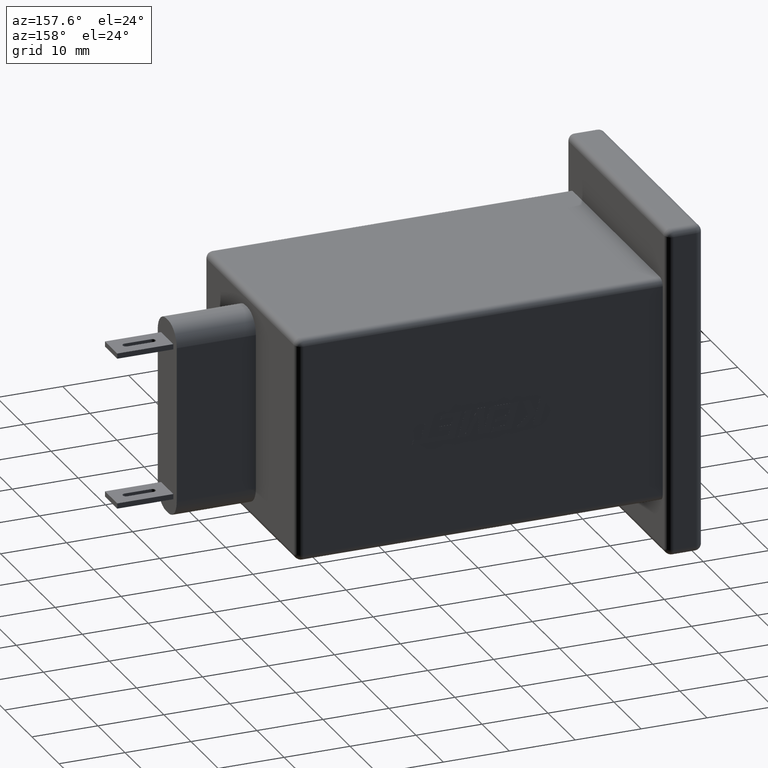
[diagram: clean part render]
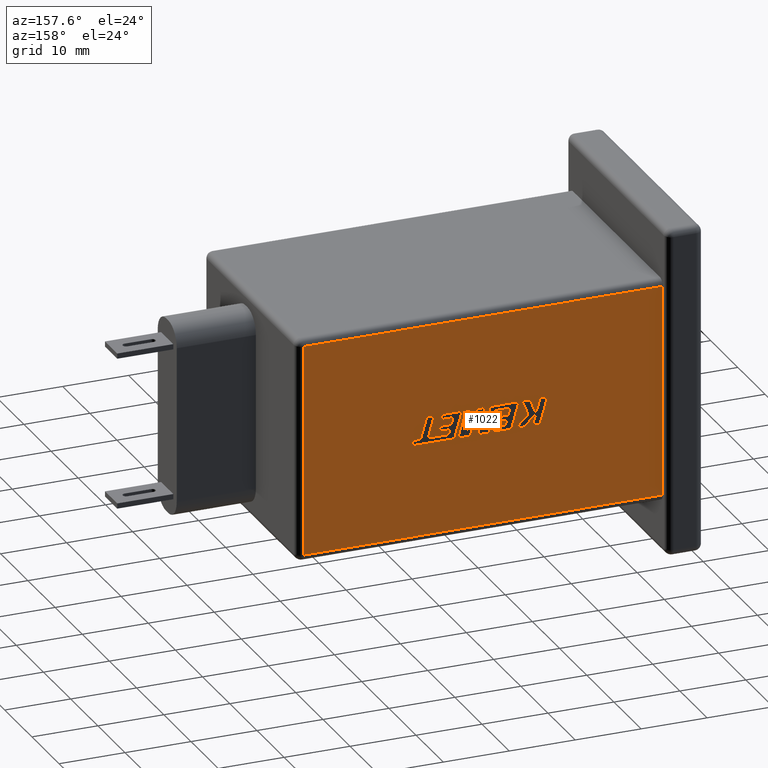
[diagram: same view with one face highlighted and labeled with its STEP entity id]
A machine part, auxiliary view. The second image highlights one B-rep face of the part: STEP entity #1022.
In plain terms, the highlighted planar face has unit normal (0, -1, -0).
Its self-contained STEP definition (entity closure, byte-faithful):
#12 = VECTOR ( 'NONE', #1913, 1000.000000000000000 ) ;
#14 = DIRECTION ( 'NONE',  ( 0.2746459304916881200, 2.797052687837504500E-016, -0.9615454294334484500 ) ) ;
#33 = EDGE_CURVE ( 'NONE', #3917, #7109, #1374, .T. ) ;
#80 = CARTESIAN_POINT ( 'NONE',  ( 34.81286628640292200, -1.500000000000004400, 22.98274822090290900 ) ) ;
#106 = EDGE_CURVE ( 'NONE', #6915, #4312, #2256, .T. ) ;
#126 = VERTEX_POINT ( 'NONE', #4409 ) ;
#165 = DIRECTION ( 'NONE',  ( -1.000000000000000000, 0.0000000000000000000, 0.0000000000000000000 ) ) ;
#172 = DIRECTION ( 'NONE',  ( -1.000000000000000000, -0.0000000000000000000, -0.0000000000000000000 ) ) ;
#200 = DIRECTION ( 'NONE',  ( 1.000000000000000000, -0.0000000000000000000, -0.0000000000000000000 ) ) ;
#235 = ORIENTED_EDGE ( 'NONE', *, *, #4148, .F. ) ;
#268 = DIRECTION ( 'NONE',  ( -0.2760118818968544900, -1.733371132702172400E-016, 0.9611542233438693500 ) ) ;
#274 = DIRECTION ( 'NONE',  ( 0.2759782365590801600, 1.741735958966925200E-016, -0.9611638845408936300 ) ) ;
#280 = EDGE_LOOP ( 'NONE', ( #548, #2153, #1876, #5663 ) ) ;
#320 = CARTESIAN_POINT ( 'NONE',  ( 61.00000000000000000, -1.500000000000008200, 41.99999999999999300 ) ) ;
#338 = DIRECTION ( 'NONE',  ( 0.9999999968487352000, 0.0000000000000000000, 7.938847109813196000E-005 ) ) ;
#354 = ORIENTED_EDGE ( 'NONE', *, *, #6778, .F. ) ;
#366 = VECTOR ( 'NONE', #3983, 1000.000000000000000 ) ;
#369 = VECTOR ( 'NONE', #338, 1000.000000000000100 ) ;
#371 = LINE ( 'NONE', #538, #2487 ) ;
#380 = CARTESIAN_POINT ( 'NONE',  ( 24.76482028821084900, -1.500000000000004700, 24.70227787561509600 ) ) ;
#395 = CARTESIAN_POINT ( 'NONE',  ( 30.88344785692807900, -1.500000000000005100, 26.24790267165708700 ) ) ;
#399 = LINE ( 'NONE', #4178, #4839 ) ;
#433 = ORIENTED_EDGE ( 'NONE', *, *, #4092, .F. ) ;
#449 = VECTOR ( 'NONE', #6563, 1000.000000000000200 ) ;
#468 = LINE ( 'NONE', #944, #6546 ) ;
#481 = DIRECTION ( 'NONE',  ( 0.3725077383644785400, -1.838233314076624700E-016, 0.9280290862136709700 ) ) ;
#485 = CARTESIAN_POINT ( 'NONE',  ( 34.39741964812981200, -1.500000000000005100, 27.01505065592327200 ) ) ;
#488 = DIRECTION ( 'NONE',  ( -0.05596501978068493100, -1.809271256043938600E-016, 0.9984327301130244700 ) ) ;
#489 = VECTOR ( 'NONE', #6605, 1000.000000000000000 ) ;
#508 = ORIENTED_EDGE ( 'NONE', *, *, #6451, .F. ) ;
#536 = LINE ( 'NONE', #4916, #2728 ) ;
#538 = CARTESIAN_POINT ( 'NONE',  ( 37.06719762593126400, -1.500000000000004400, 22.98274822090290900 ) ) ;
#541 = LINE ( 'NONE', #1779, #804 ) ;
#548 = ORIENTED_EDGE ( 'NONE', *, *, #4661, .T. ) ;
#553 = LINE ( 'NONE', #4264, #5786 ) ;
#557 = DIRECTION ( 'NONE',  ( 1.000000000000000000, 0.0000000000000000000, 0.0000000000000000000 ) ) ;
#560 = VECTOR ( 'NONE', #1823, 1000.000000000000100 ) ;
#581 = CARTESIAN_POINT ( 'NONE',  ( 22.95077339183142200, -1.500000000000005100, 27.01505065592314700 ) ) ;
#590 = EDGE_CURVE ( 'NONE', #6750, #2536, #4748, .T. ) ;
#613 = ORIENTED_EDGE ( 'NONE', *, *, #2699, .F. ) ;
#627 = VECTOR ( 'NONE', #200, 1000.000000000000000 ) ;
#629 = CARTESIAN_POINT ( 'NONE',  ( 31.41977711096069500, -1.500000000000004400, 22.98274822090290900 ) ) ;
#636 = DIRECTION ( 'NONE',  ( 0.4668459304955202000, 1.594839911144561200E-016, -0.8843386665637615900 ) ) ;
#653 = LINE ( 'NONE', #3552, #6816 ) ;
#678 = VECTOR ( 'NONE', #5304, 1000.000000000000100 ) ;
#697 = DIRECTION ( 'NONE',  ( 1.000000000000000000, 0.0000000000000000000, 0.0000000000000000000 ) ) ;
#708 = DIRECTION ( 'NONE',  ( -0.2762517575166434400, -1.914783743965724700E-016, 0.9610853065513828000 ) ) ;
#729 = DIRECTION ( 'NONE',  ( 1.000000000000000000, 0.0000000000000000000, 0.0000000000000000000 ) ) ;
#751 = EDGE_CURVE ( 'NONE', #1412, #1954, #653, .T. ) ;
#794 = VERTEX_POINT ( 'NONE', #1408 ) ;
#804 = VECTOR ( 'NONE', #6243, 1000.000000000000100 ) ;
#815 = LINE ( 'NONE', #1115, #1709 ) ;
#827 = VECTOR ( 'NONE', #557, 1000.000000000000000 ) ;
#856 = LINE ( 'NONE', #485, #1562 ) ;
#864 = CARTESIAN_POINT ( 'NONE',  ( 35.90736599387789600, -1.500000000000005300, 27.01505065592327200 ) ) ;
#870 = CARTESIAN_POINT ( 'NONE',  ( 28.44084720379145300, -1.500000000000004400, 22.98274822090290900 ) ) ;
#896 = CARTESIAN_POINT ( 'NONE',  ( 37.55956023659646800, -1.500000000000004900, 25.24571829843146600 ) ) ;
#910 = DIRECTION ( 'NONE',  ( 0.2762437428917329800, 1.921505724587644600E-016, -0.9610876102172819500 ) ) ;
#911 = VECTOR ( 'NONE', #3980, 1000.000000000000100 ) ;
#924 = DIRECTION ( 'NONE',  ( -1.000000000000000000, 0.0000000000000000000, 0.0000000000000000000 ) ) ;
#941 = VECTOR ( 'NONE', #274, 1000.000000000000100 ) ;
#944 = CARTESIAN_POINT ( 'NONE',  ( 28.44084720379146000, -1.500000000000004400, 22.98274822090290900 ) ) ;
#950 = LINE ( 'NONE', #380, #2083 ) ;
#996 = ORIENTED_EDGE ( 'NONE', *, *, #6058, .F. ) ;
#1006 = DIRECTION ( 'NONE',  ( 1.000000000000000000, 0.0000000000000000000, 0.0000000000000000000 ) ) ;
#1022 = ADVANCED_FACE ( 'NONE', ( #5025, #1552, #5566, #4852 ), #5503, .F. ) ;
#1076 = CARTESIAN_POINT ( 'NONE',  ( 5.500000000000000000, -1.500000000000008200, 41.99999999999999300 ) ) ;
#1109 = EDGE_CURVE ( 'NONE', #2650, #4112, #7173, .T. ) ;
#1115 = CARTESIAN_POINT ( 'NONE',  ( 30.66417864564359500, -1.500000000000004900, 25.24571829842301400 ) ) ;
#1119 = VECTOR ( 'NONE', #2507, 1000.000000000000200 ) ;
#1121 = CARTESIAN_POINT ( 'NONE',  ( 35.42209002748898400, -1.500000000000005100, 27.01505065592327200 ) ) ;
#1124 = ORIENTED_EDGE ( 'NONE', *, *, #6722, .F. ) ;
#1177 = EDGE_CURVE ( 'NONE', #4743, #4176, #4168, .T. ) ;
#1205 = ORIENTED_EDGE ( 'NONE', *, *, #4888, .F. ) ;
#1218 = ORIENTED_EDGE ( 'NONE', *, *, #3444, .F. ) ;
#1250 = EDGE_CURVE ( 'NONE', #2536, #3597, #6302, .T. ) ;
#1280 = LINE ( 'NONE', #4035, #2255 ) ;
#1282 = VECTOR ( 'NONE', #2592, 1000.000000000000100 ) ;
#1285 = ORIENTED_EDGE ( 'NONE', *, *, #5229, .F. ) ;
#1295 = DIRECTION ( 'NONE',  ( -1.000000000000000000, 0.0000000000000000000, 0.0000000000000000000 ) ) ;
#1308 = ORIENTED_EDGE ( 'NONE', *, *, #1177, .F. ) ;
#1319 = CARTESIAN_POINT ( 'NONE',  ( 24.10958738787216800, -1.500000000000004400, 22.98274822090290900 ) ) ;
#1343 = VECTOR ( 'NONE', #268, 1000.000000000000200 ) ;
#1350 = VECTOR ( 'NONE', #697, 1000.000000000000000 ) ;
#1373 = CARTESIAN_POINT ( 'NONE',  ( 25.92310707368304500, -1.500000000000004700, 24.82561987214261400 ) ) ;
#1374 = LINE ( 'NONE', #2033, #1282 ) ;
#1395 = EDGE_LOOP ( 'NONE', ( #6025, #235, #6316, #4737, #1993, #6724, #2118, #6148, #4650, #1771, #6971, #6185, #1614, #613, #3075, #6376, #4255, #2145, #1124, #508, #354, #3805, #3933 ) ) ;
#1408 = CARTESIAN_POINT ( 'NONE',  ( 60.00000000000000000, -1.500000000000001600, 8.999999999999994700 ) ) ;
#1412 = VERTEX_POINT ( 'NONE', #4735 ) ;
#1430 = VERTEX_POINT ( 'NONE', #3009 ) ;
#1431 = CARTESIAN_POINT ( 'NONE',  ( 31.62454198682061700, -1.500000000000005100, 27.01505065592327200 ) ) ;
#1440 = CARTESIAN_POINT ( 'NONE',  ( 41.27732831987938800, -1.500000000000005100, 27.01505065592327200 ) ) ;
#1447 = VECTOR ( 'NONE', #3583, 1000.000000000000100 ) ;
#1452 = DIRECTION ( 'NONE',  ( 0.0000000000000000000, 2.040851148208008500E-016, -1.000000000000000000 ) ) ;
#1521 = CARTESIAN_POINT ( 'NONE',  ( 35.42209002748897700, -1.500000000000005300, 27.01505065592327200 ) ) ;
#1551 = VERTEX_POINT ( 'NONE', #3235 ) ;
#1552 = FACE_OUTER_BOUND ( 'NONE', #280, .T. ) ;
#1562 = VECTOR ( 'NONE', #4391, 1000.000000000000000 ) ;
#1579 = CARTESIAN_POINT ( 'NONE',  ( 24.76482028821084600, -1.500000000000004900, 24.70227787561509600 ) ) ;
#1595 = CARTESIAN_POINT ( 'NONE',  ( 43.54032292191468700, -1.500000000000004400, 22.98274822090290900 ) ) ;
#1598 = LINE ( 'NONE', #3207, #449 ) ;
#1614 = ORIENTED_EDGE ( 'NONE', *, *, #6943, .F. ) ;
#1619 = VECTOR ( 'NONE', #4395, 1000.000000000000000 ) ;
#1621 = VERTEX_POINT ( 'NONE', #7121 ) ;
#1626 = LINE ( 'NONE', #3109, #1343 ) ;
#1631 = DIRECTION ( 'NONE',  ( -1.000000000000000000, 0.0000000000000000000, 0.0000000000000000000 ) ) ;
#1677 = DIRECTION ( 'NONE',  ( 0.2755265765475174400, 1.904123134576449200E-016, -0.9612934544747534500 ) ) ;
#1705 = VECTOR ( 'NONE', #5642, 1000.000000000000000 ) ;
#1709 = VECTOR ( 'NONE', #14, 1000.000000000000000 ) ;
#1732 = VERTEX_POINT ( 'NONE', #4562 ) ;
#1743 = EDGE_CURVE ( 'NONE', #3114, #2519, #5698, .T. ) ;
#1761 = ORIENTED_EDGE ( 'NONE', *, *, #2357, .F. ) ;
#1762 = LINE ( 'NONE', #2169, #5583 ) ;
#1771 = ORIENTED_EDGE ( 'NONE', *, *, #4770, .F. ) ;
#1779 = CARTESIAN_POINT ( 'NONE',  ( 38.95388878641102800, -1.500000000000005100, 27.01505065592327200 ) ) ;
#1823 = DIRECTION ( 'NONE',  ( 0.2763139702539126300, 1.550466122641729800E-016, -0.9610674221107069500 ) ) ;
#1838 = CARTESIAN_POINT ( 'NONE',  ( 22.95077339183142200, -1.500000000000005300, 27.01505065592314400 ) ) ;
#1869 = LINE ( 'NONE', #6203, #7049 ) ;
#1876 = ORIENTED_EDGE ( 'NONE', *, *, #6800, .T. ) ;
#1881 = LINE ( 'NONE', #2165, #6810 ) ;
#1909 = EDGE_CURVE ( 'NONE', #4908, #4085, #7137, .T. ) ;
#1913 = DIRECTION ( 'NONE',  ( -0.2763173343569908000, -1.921463428683799700E-016, 0.9610664548998924000 ) ) ;
#1916 = ORIENTED_EDGE ( 'NONE', *, *, #3779, .F. ) ;
#1919 = CARTESIAN_POINT ( 'NONE',  ( 41.06416490523452700, -1.500000000000004700, 23.76131085713095100 ) ) ;
#1951 = VECTOR ( 'NONE', #4555, 1000.000000000000000 ) ;
#1954 = VERTEX_POINT ( 'NONE', #3277 ) ;
#1963 = CARTESIAN_POINT ( 'NONE',  ( 42.21254510017709500, -1.500000000000004700, 23.76131085714095500 ) ) ;
#1993 = ORIENTED_EDGE ( 'NONE', *, *, #1250, .F. ) ;
#2008 = EDGE_CURVE ( 'NONE', #4922, #4908, #815, .T. ) ;
#2012 = EDGE_LOOP ( 'NONE', ( #2299, #2203, #6885, #996, #4889, #5591, #1761, #1218, #433, #2958, #3972 ) ) ;
#2020 = CARTESIAN_POINT ( 'NONE',  ( 60.00000000000000000, -1.500000000000001300, 7.999999999999989300 ) ) ;
#2033 = CARTESIAN_POINT ( 'NONE',  ( 31.20178300579108600, -1.500000000000004400, 23.75027628487226400 ) ) ;
#2066 = CARTESIAN_POINT ( 'NONE',  ( 36.58140670959856800, -1.500000000000004400, 22.98274822090290900 ) ) ;
#2069 = VERTEX_POINT ( 'NONE', #80 ) ;
#2080 = VERTEX_POINT ( 'NONE', #5077 ) ;
#2083 = VECTOR ( 'NONE', #5934, 1000.000000000000100 ) ;
#2110 = VERTEX_POINT ( 'NONE', #4038 ) ;
#2111 = CARTESIAN_POINT ( 'NONE',  ( 25.92310707368304500, -1.500000000000004900, 24.82561987214261400 ) ) ;
#2118 = ORIENTED_EDGE ( 'NONE', *, *, #6914, .F. ) ;
#2120 = EDGE_CURVE ( 'NONE', #6459, #4631, #5437, .T. ) ;
#2138 = DIRECTION ( 'NONE',  ( 1.000000000000000000, -0.0000000000000000000, -0.0000000000000000000 ) ) ;
#2145 = ORIENTED_EDGE ( 'NONE', *, *, #1743, .F. ) ;
#2146 = VECTOR ( 'NONE', #3178, 1000.000000000000000 ) ;
#2153 = ORIENTED_EDGE ( 'NONE', *, *, #2173, .T. ) ;
#2165 = CARTESIAN_POINT ( 'NONE',  ( 32.65529364155551700, -1.500000000000004400, 23.42519778631171300 ) ) ;
#2169 = CARTESIAN_POINT ( 'NONE',  ( 26.83063933826510100, -1.500000000000005100, 27.01505065592327200 ) ) ;
#2173 = EDGE_CURVE ( 'NONE', #794, #2110, #4134, .T. ) ;
#2183 = EDGE_CURVE ( 'NONE', #3686, #4465, #6110, .T. ) ;
#2198 = CARTESIAN_POINT ( 'NONE',  ( 33.38411913698389800, -1.500000000000004900, 25.86347688921113200 ) ) ;
#2203 = ORIENTED_EDGE ( 'NONE', *, *, #5031, .F. ) ;
#2255 = VECTOR ( 'NONE', #708, 1000.000000000000100 ) ;
#2256 = LINE ( 'NONE', #4365, #6737 ) ;
#2257 = CARTESIAN_POINT ( 'NONE',  ( 25.25772237010004400, -1.500000000000004400, 22.98274822090290900 ) ) ;
#2278 = LINE ( 'NONE', #2478, #12 ) ;
#2279 = VERTEX_POINT ( 'NONE', #870 ) ;
#2290 = CARTESIAN_POINT ( 'NONE',  ( 26.47851388029219400, -1.500000000000004400, 22.98274822090290900 ) ) ;
#2291 = CARTESIAN_POINT ( 'NONE',  ( 30.66417864564359500, -1.500000000000004900, 25.24571829842301400 ) ) ;
#2299 = ORIENTED_EDGE ( 'NONE', *, *, #7096, .F. ) ;
#2328 = VECTOR ( 'NONE', #481, 1000.000000000000100 ) ;
#2357 = EDGE_CURVE ( 'NONE', #2746, #2778, #3473, .T. ) ;
#2363 = CARTESIAN_POINT ( 'NONE',  ( 31.41977711096069500, -1.500000000000004400, 22.98274822090290900 ) ) ;
#2367 = VERTEX_POINT ( 'NONE', #1963 ) ;
#2370 = EDGE_CURVE ( 'NONE', #4312, #6559, #6665, .T. ) ;
#2381 = CARTESIAN_POINT ( 'NONE',  ( 41.27732831987938800, -1.500000000000005300, 27.01505065592327200 ) ) ;
#2407 = DIRECTION ( 'NONE',  ( -1.000000000000000000, 0.0000000000000000000, 0.0000000000000000000 ) ) ;
#2478 = CARTESIAN_POINT ( 'NONE',  ( 41.06416490523452700, -1.500000000000004400, 23.76131085713095100 ) ) ;
#2487 = VECTOR ( 'NONE', #6059, 1000.000000000000000 ) ;
#2495 = VERTEX_POINT ( 'NONE', #1521 ) ;
#2507 = DIRECTION ( 'NONE',  ( 0.9999891854650020400, 0.0000000000000000000, 0.004650693823678667000 ) ) ;
#2519 = VERTEX_POINT ( 'NONE', #6439 ) ;
#2536 = VERTEX_POINT ( 'NONE', #6529 ) ;
#2556 = VERTEX_POINT ( 'NONE', #2066 ) ;
#2580 = VERTEX_POINT ( 'NONE', #6575 ) ;
#2585 = EDGE_CURVE ( 'NONE', #4631, #6828, #4531, .T. ) ;
#2592 = DIRECTION ( 'NONE',  ( 0.2732148821746329700, 0.0000000000000000000, -0.9619530280415471400 ) ) ;
#2597 = EDGE_CURVE ( 'NONE', #2580, #2495, #856, .T. ) ;
#2642 = CARTESIAN_POINT ( 'NONE',  ( 37.27349508127032600, -1.500000000000005100, 26.24775554403742500 ) ) ;
#2650 = VERTEX_POINT ( 'NONE', #5659 ) ;
#2699 = EDGE_CURVE ( 'NONE', #4085, #4088, #1598, .T. ) ;
#2728 = VECTOR ( 'NONE', #1006, 1000.000000000000000 ) ;
#2740 = CARTESIAN_POINT ( 'NONE',  ( 25.25772237010004400, -1.500000000000004400, 22.98274822090290900 ) ) ;
#2746 = VERTEX_POINT ( 'NONE', #3787 ) ;
#2761 = VECTOR ( 'NONE', #636, 1000.000000000000200 ) ;
#2778 = VERTEX_POINT ( 'NONE', #2111 ) ;
#2782 = CARTESIAN_POINT ( 'NONE',  ( 27.80550701809560000, -1.500000000000004400, 22.98274822090290900 ) ) ;
#2807 = EDGE_CURVE ( 'NONE', #6847, #6708, #3752, .T. ) ;
#2838 = DIRECTION ( 'NONE',  ( 0.2740217765954066100, 2.080860013522332200E-016, -0.9617234872620595800 ) ) ;
#2892 = DIRECTION ( 'NONE',  ( 0.2745159998572682700, 2.080860516464872000E-016, -0.9615825319869140100 ) ) ;
#2958 = ORIENTED_EDGE ( 'NONE', *, *, #2585, .F. ) ;
#2981 = DIRECTION ( 'NONE',  ( -0.4443210308329538800, -1.348688820428387300E-016, 0.8958676361826792800 ) ) ;
#3009 = CARTESIAN_POINT ( 'NONE',  ( 27.28051288566936300, -1.500000000000005300, 27.01505065592327200 ) ) ;
#3031 = ORIENTED_EDGE ( 'NONE', *, *, #3825, .F. ) ;
#3075 = ORIENTED_EDGE ( 'NONE', *, *, #1909, .F. ) ;
#3082 = CARTESIAN_POINT ( 'NONE',  ( 24.09737579134209200, -1.500000000000005300, 27.01505065592327200 ) ) ;
#3109 = CARTESIAN_POINT ( 'NONE',  ( 35.43327172737105700, -1.500000000000004400, 23.40791028979110400 ) ) ;
#3114 = VERTEX_POINT ( 'NONE', #6956 ) ;
#3132 = CARTESIAN_POINT ( 'NONE',  ( 32.45407208621366400, -1.500000000000005300, 27.01505065592327200 ) ) ;
#3148 = ORIENTED_EDGE ( 'NONE', *, *, #4292, .F. ) ;
#3178 = DIRECTION ( 'NONE',  ( -1.000000000000000000, 0.0000000000000000000, 0.0000000000000000000 ) ) ;
#3207 = CARTESIAN_POINT ( 'NONE',  ( 29.14638549296495600, -1.500000000000004700, 24.50028390023064500 ) ) ;
#3223 = EDGE_CURVE ( 'NONE', #1430, #1732, #5418, .T. ) ;
#3235 = CARTESIAN_POINT ( 'NONE',  ( 39.28975664450336300, -1.500000000000004900, 25.24571829843146600 ) ) ;
#3251 = DIRECTION ( 'NONE',  ( -1.000000000000000000, 0.0000000000000000000, 0.0000000000000000000 ) ) ;
#3277 = CARTESIAN_POINT ( 'NONE',  ( 37.77223322580821500, -1.500000000000004900, 24.50041876723160100 ) ) ;
#3294 = CARTESIAN_POINT ( 'NONE',  ( 24.72491191533705300, -1.500000000000004900, 24.82561987214266700 ) ) ;
#3308 = ORIENTED_EDGE ( 'NONE', *, *, #6168, .F. ) ;
#3326 = CARTESIAN_POINT ( 'NONE',  ( 37.99047254368943500, -1.500000000000004400, 23.75041115187108400 ) ) ;
#3436 = CARTESIAN_POINT ( 'NONE',  ( 30.87709684757679400, -1.500000000000004900, 24.50028390023064500 ) ) ;
#3439 = LINE ( 'NONE', #2020, #5184 ) ;
#3444 = EDGE_CURVE ( 'NONE', #1621, #2746, #1762, .T. ) ;
#3448 = VECTOR ( 'NONE', #2981, 1000.000000000000100 ) ;
#3466 = LINE ( 'NONE', #4244, #7179 ) ;
#3473 = LINE ( 'NONE', #1373, #678 ) ;
#3521 = LINE ( 'NONE', #6099, #827 ) ;
#3531 = VERTEX_POINT ( 'NONE', #6081 ) ;
#3552 = CARTESIAN_POINT ( 'NONE',  ( 39.50267484643187300, -1.500000000000004700, 24.50041876723160100 ) ) ;
#3583 = DIRECTION ( 'NONE',  ( 0.2793947940814935400, 2.776039126819028000E-016, -0.9601763114346030200 ) ) ;
#3597 = VERTEX_POINT ( 'NONE', #6621 ) ;
#3601 = LINE ( 'NONE', #2290, #6464 ) ;
#3607 = VECTOR ( 'NONE', #1631, 1000.000000000000000 ) ;
#3622 = DIRECTION ( 'NONE',  ( 0.2746918797667246600, 2.797520645108678100E-016, -0.9615323037684294600 ) ) ;
#3678 = LINE ( 'NONE', #6675, #366 ) ;
#3685 = ORIENTED_EDGE ( 'NONE', *, *, #7169, .F. ) ;
#3686 = VERTEX_POINT ( 'NONE', #6220 ) ;
#3704 = DIRECTION ( 'NONE',  ( 0.7145695586381846100, 8.231384304564480700E-017, -0.6995643972270386700 ) ) ;
#3752 = LINE ( 'NONE', #6018, #4212 ) ;
#3767 = VECTOR ( 'NONE', #165, 1000.000000000000000 ) ;
#3778 = CARTESIAN_POINT ( 'NONE',  ( 30.90680436498023600, -1.500000000000005100, 27.01505065592327200 ) ) ;
#3779 = EDGE_CURVE ( 'NONE', #6559, #4743, #2278, .T. ) ;
#3786 = LINE ( 'NONE', #5989, #3607 ) ;
#3787 = CARTESIAN_POINT ( 'NONE',  ( 26.83063933826510100, -1.500000000000005300, 27.01505065592327500 ) ) ;
#3799 = VERTEX_POINT ( 'NONE', #864 ) ;
#3805 = ORIENTED_EDGE ( 'NONE', *, *, #1109, .F. ) ;
#3807 = LINE ( 'NONE', #1431, #941 ) ;
#3811 = EDGE_CURVE ( 'NONE', #2069, #2650, #7075, .T. ) ;
#3815 = CARTESIAN_POINT ( 'NONE',  ( 25.60374203142665200, -1.500000000000005100, 27.01505065592327200 ) ) ;
#3825 = EDGE_CURVE ( 'NONE', #1551, #1412, #399, .T. ) ;
#3853 = DIRECTION ( 'NONE',  ( 1.000000000000000000, 0.0000000000000000000, 0.0000000000000000000 ) ) ;
#3885 = EDGE_CURVE ( 'NONE', #4176, #2367, #5106, .T. ) ;
#3898 = VECTOR ( 'NONE', #2407, 1000.000000000000000 ) ;
#3917 = VERTEX_POINT ( 'NONE', #5374 ) ;
#3931 = VECTOR ( 'NONE', #3853, 1000.000000000000000 ) ;
#3933 = ORIENTED_EDGE ( 'NONE', *, *, #3811, .F. ) ;
#3970 = ORIENTED_EDGE ( 'NONE', *, *, #2807, .F. ) ;
#3972 = ORIENTED_EDGE ( 'NONE', *, *, #2120, .F. ) ;
#3974 = LINE ( 'NONE', #6417, #2146 ) ;
#3980 = DIRECTION ( 'NONE',  ( -0.2762033010252023500, -1.550517443053024700E-016, 0.9610992334315855400 ) ) ;
#3983 = DIRECTION ( 'NONE',  ( 1.000000000000000000, 0.0000000000000000000, 0.0000000000000000000 ) ) ;
#3990 = ORIENTED_EDGE ( 'NONE', *, *, #4837, .F. ) ;
#4035 = CARTESIAN_POINT ( 'NONE',  ( 31.82197500892539200, -1.500000000000004400, 22.98274822090290900 ) ) ;
#4038 = CARTESIAN_POINT ( 'NONE',  ( 5.500000000000000000, -1.500000000000001600, 8.999999999999994700 ) ) ;
#4085 = VERTEX_POINT ( 'NONE', #6525 ) ;
#4088 = VERTEX_POINT ( 'NONE', #6026 ) ;
#4092 = EDGE_CURVE ( 'NONE', #6828, #1621, #4664, .T. ) ;
#4112 = VERTEX_POINT ( 'NONE', #6073 ) ;
#4134 = LINE ( 'NONE', #6799, #6875 ) ;
#4148 = EDGE_CURVE ( 'NONE', #2495, #2556, #5712, .T. ) ;
#4168 = LINE ( 'NONE', #6223, #5896 ) ;
#4176 = VERTEX_POINT ( 'NONE', #2381 ) ;
#4178 = CARTESIAN_POINT ( 'NONE',  ( 39.28975664450336300, -1.500000000000004900, 25.24571829843146600 ) ) ;
#4181 = VERTEX_POINT ( 'NONE', #2257 ) ;
#4212 = VECTOR ( 'NONE', #3251, 1000.000000000000000 ) ;
#4213 = VERTEX_POINT ( 'NONE', #2782 ) ;
#4235 = CARTESIAN_POINT ( 'NONE',  ( 39.83829749180810600, -1.500000000000004400, 23.75560966146689900 ) ) ;
#4244 = CARTESIAN_POINT ( 'NONE',  ( 40.06060734402290500, -1.500000000000004400, 22.98274822090290900 ) ) ;
#4255 = ORIENTED_EDGE ( 'NONE', *, *, #7127, .F. ) ;
#4264 = CARTESIAN_POINT ( 'NONE',  ( 27.80550701809560000, -1.500000000000004400, 22.98274822090290900 ) ) ;
#4265 = CARTESIAN_POINT ( 'NONE',  ( 38.95388878641102800, -1.500000000000005300, 27.01505065592327200 ) ) ;
#4279 = DIRECTION ( 'NONE',  ( 0.2762033010288912300, 0.0000000000000000000, -0.9610992334305253900 ) ) ;
#4292 = EDGE_CURVE ( 'NONE', #1954, #6915, #5888, .T. ) ;
#4312 = VERTEX_POINT ( 'NONE', #5650 ) ;
#4318 = CARTESIAN_POINT ( 'NONE',  ( 43.31655229483814700, -1.500000000000004400, 23.76139850258449800 ) ) ;
#4340 = VERTEX_POINT ( 'NONE', #5625 ) ;
#4365 = CARTESIAN_POINT ( 'NONE',  ( 37.99047254368943500, -1.500000000000004400, 23.75041115187108400 ) ) ;
#4391 = DIRECTION ( 'NONE',  ( 1.000000000000000000, 0.0000000000000000000, 0.0000000000000000000 ) ) ;
#4395 = DIRECTION ( 'NONE',  ( -0.0000000000000000000, -2.040851148208008200E-016, 1.000000000000000000 ) ) ;
#4409 = CARTESIAN_POINT ( 'NONE',  ( 37.06719762593126400, -1.500000000000004400, 22.98274822090290600 ) ) ;
#4465 = VERTEX_POINT ( 'NONE', #5780 ) ;
#4505 = EDGE_CURVE ( 'NONE', #2778, #4213, #553, .T. ) ;
#4531 = LINE ( 'NONE', #5011, #6064 ) ;
#4555 = DIRECTION ( 'NONE',  ( 1.000000000000000000, -0.0000000000000000000, 1.089306025555441100E-013 ) ) ;
#4557 = EDGE_CURVE ( 'NONE', #3597, #2580, #1626, .T. ) ;
#4562 = CARTESIAN_POINT ( 'NONE',  ( 31.62454198682061700, -1.500000000000005300, 27.01505065592327200 ) ) ;
#4583 = LINE ( 'NONE', #1076, #1619 ) ;
#4588 = EDGE_CURVE ( 'NONE', #2556, #2069, #6126, .T. ) ;
#4631 = VERTEX_POINT ( 'NONE', #3082 ) ;
#4648 = LINE ( 'NONE', #6410, #369 ) ;
#4650 = ORIENTED_EDGE ( 'NONE', *, *, #3223, .F. ) ;
#4660 = VERTEX_POINT ( 'NONE', #896 ) ;
#4661 = EDGE_CURVE ( 'NONE', #4465, #794, #3439, .T. ) ;
#4664 = LINE ( 'NONE', #3815, #2328 ) ;
#4714 = VERTEX_POINT ( 'NONE', #7063 ) ;
#4734 = VECTOR ( 'NONE', #172, 1000.000000000000000 ) ;
#4735 = CARTESIAN_POINT ( 'NONE',  ( 39.50267484643187300, -1.500000000000004900, 24.50041876723160100 ) ) ;
#4737 = ORIENTED_EDGE ( 'NONE', *, *, #4557, .F. ) ;
#4743 = VERTEX_POINT ( 'NONE', #5427 ) ;
#4748 = LINE ( 'NONE', #5169, #1350 ) ;
#4760 = DIRECTION ( 'NONE',  ( -1.000000000000000000, 0.0000000000000000000, 0.0000000000000000000 ) ) ;
#4770 = EDGE_CURVE ( 'NONE', #2279, #1430, #468, .T. ) ;
#4794 = DIRECTION ( 'NONE',  ( 0.0000000000000000000, -1.000000000000000000, -2.040851148208008500E-016 ) ) ;
#4820 = ORIENTED_EDGE ( 'NONE', *, *, #3885, .F. ) ;
#4828 = DIRECTION ( 'NONE',  ( -0.2765379750249953900, -1.550362177249469100E-016, 0.9610029908221279200 ) ) ;
#4837 = EDGE_CURVE ( 'NONE', #126, #3799, #371, .T. ) ;
#4839 = VECTOR ( 'NONE', #3622, 1000.000000000000000 ) ;
#4842 = ORIENTED_EDGE ( 'NONE', *, *, #4903, .F. ) ;
#4852 = FACE_BOUND ( 'NONE', #6115, .T. ) ;
#4888 = EDGE_CURVE ( 'NONE', #6708, #4660, #1869, .T. ) ;
#4889 = ORIENTED_EDGE ( 'NONE', *, *, #6931, .F. ) ;
#4903 = EDGE_CURVE ( 'NONE', #5752, #6847, #541, .T. ) ;
#4908 = VERTEX_POINT ( 'NONE', #3436 ) ;
#4911 = EDGE_CURVE ( 'NONE', #3799, #5752, #3678, .T. ) ;
#4916 = CARTESIAN_POINT ( 'NONE',  ( 37.55956023659646800, -1.500000000000004900, 25.24571829843146600 ) ) ;
#4922 = VERTEX_POINT ( 'NONE', #2291 ) ;
#5011 = CARTESIAN_POINT ( 'NONE',  ( 24.72491191533706000, -1.500000000000004700, 24.82561987214267100 ) ) ;
#5025 = FACE_BOUND ( 'NONE', #1395, .T. ) ;
#5031 = EDGE_CURVE ( 'NONE', #4181, #3531, #6616, .T. ) ;
#5042 = CARTESIAN_POINT ( 'NONE',  ( 28.93371250374830700, -1.500000000000004900, 25.24571829842301400 ) ) ;
#5077 = CARTESIAN_POINT ( 'NONE',  ( 26.47851388029219400, -1.500000000000004400, 22.98274822090290600 ) ) ;
#5080 = LINE ( 'NONE', #5042, #1705 ) ;
#5106 = LINE ( 'NONE', #1440, #6048 ) ;
#5169 = CARTESIAN_POINT ( 'NONE',  ( 32.45407208621366400, -1.500000000000005100, 27.01505065592327200 ) ) ;
#5177 = VERTEX_POINT ( 'NONE', #1595 ) ;
#5184 = VECTOR ( 'NONE', #5336, 1000.000000000000000 ) ;
#5206 = LINE ( 'NONE', #2363, #3898 ) ;
#5229 = EDGE_CURVE ( 'NONE', #4660, #1551, #536, .T. ) ;
#5236 = DIRECTION ( 'NONE',  ( -1.000000000000000000, 0.0000000000000000000, 0.0000000000000000000 ) ) ;
#5290 = CARTESIAN_POINT ( 'NONE',  ( 37.77223322580820800, -1.500000000000004700, 24.50041876723160100 ) ) ;
#5304 = DIRECTION ( 'NONE',  ( -0.3829140317376970600, 1.829824641116806400E-016, -0.9237839814038679700 ) ) ;
#5313 = VECTOR ( 'NONE', #4279, 1000.000000000000100 ) ;
#5336 = DIRECTION ( 'NONE',  ( -0.0000000000000000000, 2.040851148208008500E-016, -1.000000000000000000 ) ) ;
#5374 = CARTESIAN_POINT ( 'NONE',  ( 31.20178300579108200, -1.500000000000004400, 23.75027628487226400 ) ) ;
#5407 = ORIENTED_EDGE ( 'NONE', *, *, #2370, .F. ) ;
#5418 = LINE ( 'NONE', #3778, #3931 ) ;
#5427 = CARTESIAN_POINT ( 'NONE',  ( 40.12867839094639800, -1.500000000000005300, 27.01505065592327200 ) ) ;
#5437 = LINE ( 'NONE', #6188, #1951 ) ;
#5450 = CARTESIAN_POINT ( 'NONE',  ( 39.17161315758657700, -1.500000000000005100, 26.24775554403742500 ) ) ;
#5503 = PLANE ( 'NONE',  #5775 ) ;
#5566 = FACE_BOUND ( 'NONE', #2012, .T. ) ;
#5583 = VECTOR ( 'NONE', #2138, 1000.000000000000000 ) ;
#5591 = ORIENTED_EDGE ( 'NONE', *, *, #4505, .F. ) ;
#5625 = CARTESIAN_POINT ( 'NONE',  ( 43.31655229483814700, -1.500000000000004700, 23.76139850258449800 ) ) ;
#5642 = DIRECTION ( 'NONE',  ( 1.000000000000000000, 0.0000000000000000000, 0.0000000000000000000 ) ) ;
#5650 = CARTESIAN_POINT ( 'NONE',  ( 39.83829749180810600, -1.500000000000004700, 23.75560966146689900 ) ) ;
#5659 = CARTESIAN_POINT ( 'NONE',  ( 33.38411913698390500, -1.500000000000005100, 25.86347688921113200 ) ) ;
#5663 = ORIENTED_EDGE ( 'NONE', *, *, #2183, .T. ) ;
#5680 = CARTESIAN_POINT ( 'NONE',  ( 33.52904785440812000, -1.500000000000005100, 27.01505065592327200 ) ) ;
#5695 = VECTOR ( 'NONE', #6646, 1000.000000000000100 ) ;
#5698 = LINE ( 'NONE', #6150, #6283 ) ;
#5706 = VECTOR ( 'NONE', #4760, 1000.000000000000000 ) ;
#5712 = LINE ( 'NONE', #1121, #560 ) ;
#5752 = VERTEX_POINT ( 'NONE', #4265 ) ;
#5775 = AXIS2_PLACEMENT_3D ( 'NONE', #320, #4794, #1452 ) ;
#5778 = ORIENTED_EDGE ( 'NONE', *, *, #6105, .F. ) ;
#5780 = CARTESIAN_POINT ( 'NONE',  ( 60.00000000000000000, -1.500000000000008000, 40.99999999999999300 ) ) ;
#5784 = ORIENTED_EDGE ( 'NONE', *, *, #4911, .F. ) ;
#5786 = VECTOR ( 'NONE', #3704, 1000.000000000000100 ) ;
#5851 = CARTESIAN_POINT ( 'NONE',  ( 36.58140670959856800, -1.500000000000004400, 22.98274822090290900 ) ) ;
#5856 = CARTESIAN_POINT ( 'NONE',  ( 32.65529364155551700, -1.500000000000004400, 23.42519778631171000 ) ) ;
#5888 = LINE ( 'NONE', #5290, #1447 ) ;
#5889 = EDGE_CURVE ( 'NONE', #7109, #2279, #5206, .T. ) ;
#5896 = VECTOR ( 'NONE', #729, 1000.000000000000000 ) ;
#5934 = DIRECTION ( 'NONE',  ( -0.7059037656364509600, -8.932079804759047900E-017, 0.7083077534943964500 ) ) ;
#5989 = CARTESIAN_POINT ( 'NONE',  ( 33.53918995826232700, -1.500000000000004400, 22.98274822090290900 ) ) ;
#6000 = DIRECTION ( 'NONE',  ( 0.9999960426590095400, 0.0000000000000000000, 0.002813301676023212900 ) ) ;
#6018 = CARTESIAN_POINT ( 'NONE',  ( 39.17161315758657700, -1.500000000000005100, 26.24775554403742500 ) ) ;
#6025 = ORIENTED_EDGE ( 'NONE', *, *, #4588, .F. ) ;
#6026 = CARTESIAN_POINT ( 'NONE',  ( 29.36462481085093400, -1.500000000000004700, 23.75027628487226400 ) ) ;
#6048 = VECTOR ( 'NONE', #910, 1000.000000000000100 ) ;
#6058 = EDGE_CURVE ( 'NONE', #2080, #6876, #950, .T. ) ;
#6059 = DIRECTION ( 'NONE',  ( -0.2764273280489777400, -1.550413532390748600E-016, 0.9610348236706632900 ) ) ;
#6064 = VECTOR ( 'NONE', #1677, 1000.000000000000000 ) ;
#6073 = CARTESIAN_POINT ( 'NONE',  ( 33.53918995826232700, -1.500000000000004400, 22.98274822090290900 ) ) ;
#6081 = CARTESIAN_POINT ( 'NONE',  ( 24.10958738787216800, -1.500000000000004400, 22.98274822090290900 ) ) ;
#6099 = CARTESIAN_POINT ( 'NONE',  ( 29.36462481085093400, -1.500000000000004400, 23.75027628487226400 ) ) ;
#6105 = EDGE_CURVE ( 'NONE', #4340, #5177, #6405, .T. ) ;
#6110 = LINE ( 'NONE', #6248, #627 ) ;
#6115 = EDGE_LOOP ( 'NONE', ( #7172, #3148, #6827, #3031, #1285, #1205, #3970, #4842, #5784, #3990, #3308, #5778, #3685, #4820, #1308, #1916, #5407 ) ) ;
#6126 = LINE ( 'NONE', #5851, #5706 ) ;
#6148 = ORIENTED_EDGE ( 'NONE', *, *, #6268, .F. ) ;
#6150 = CARTESIAN_POINT ( 'NONE',  ( 28.64816229512069500, -1.500000000000005100, 26.24790267165708700 ) ) ;
#6168 = EDGE_CURVE ( 'NONE', #5177, #126, #3466, .T. ) ;
#6185 = ORIENTED_EDGE ( 'NONE', *, *, #33, .F. ) ;
#6188 = CARTESIAN_POINT ( 'NONE',  ( 24.09737579134209200, -1.500000000000005100, 27.01505065592327200 ) ) ;
#6201 = VERTEX_POINT ( 'NONE', #5856 ) ;
#6203 = CARTESIAN_POINT ( 'NONE',  ( 37.27349508127032600, -1.500000000000005100, 26.24775554403742500 ) ) ;
#6220 = CARTESIAN_POINT ( 'NONE',  ( 5.500000000000000000, -1.500000000000008000, 40.99999999999999300 ) ) ;
#6223 = CARTESIAN_POINT ( 'NONE',  ( 40.12867839094639800, -1.500000000000005100, 27.01505065592327200 ) ) ;
#6243 = DIRECTION ( 'NONE',  ( 0.2729786930695276600, 0.0000000000000000000, -0.9620200793798705500 ) ) ;
#6248 = CARTESIAN_POINT ( 'NONE',  ( 61.00000000000000000, -1.500000000000008000, 40.99999999999999300 ) ) ;
#6268 = EDGE_CURVE ( 'NONE', #1732, #6201, #3807, .T. ) ;
#6283 = VECTOR ( 'NONE', #2838, 1000.000000000000100 ) ;
#6285 = CARTESIAN_POINT ( 'NONE',  ( 34.81286628640291500, -1.500000000000004400, 22.98274822090290900 ) ) ;
#6302 = LINE ( 'NONE', #5680, #2761 ) ;
#6316 = ORIENTED_EDGE ( 'NONE', *, *, #2597, .F. ) ;
#6376 = ORIENTED_EDGE ( 'NONE', *, *, #2008, .F. ) ;
#6405 = LINE ( 'NONE', #4318, #5313 ) ;
#6410 = CARTESIAN_POINT ( 'NONE',  ( 42.21254510017709500, -1.500000000000004400, 23.76131085714095500 ) ) ;
#6417 = CARTESIAN_POINT ( 'NONE',  ( 30.88344785692807900, -1.500000000000005100, 26.24790267165708700 ) ) ;
#6439 = CARTESIAN_POINT ( 'NONE',  ( 28.93371250374830700, -1.500000000000004900, 25.24571829842301400 ) ) ;
#6451 = EDGE_CURVE ( 'NONE', #4714, #6689, #1280, .T. ) ;
#6459 = VERTEX_POINT ( 'NONE', #1838 ) ;
#6464 = VECTOR ( 'NONE', #6746, 1000.000000000000000 ) ;
#6525 = CARTESIAN_POINT ( 'NONE',  ( 29.14638549296495300, -1.500000000000004900, 24.50028390023064500 ) ) ;
#6529 = CARTESIAN_POINT ( 'NONE',  ( 33.52904785440812000, -1.500000000000005300, 27.01505065592327200 ) ) ;
#6546 = VECTOR ( 'NONE', #4828, 1000.000000000000200 ) ;
#6559 = VERTEX_POINT ( 'NONE', #1919 ) ;
#6563 = DIRECTION ( 'NONE',  ( 0.2793947940878294100, 2.776039126821608500E-016, -0.9601763114327593900 ) ) ;
#6575 = CARTESIAN_POINT ( 'NONE',  ( 34.39741964812981200, -1.500000000000005300, 27.01505065592327200 ) ) ;
#6605 = DIRECTION ( 'NONE',  ( 0.05375259206908601700, 1.503278995173221700E-016, -0.9985542843760946100 ) ) ;
#6616 = LINE ( 'NONE', #1319, #4734 ) ;
#6621 = CARTESIAN_POINT ( 'NONE',  ( 35.43327172737105700, -1.500000000000004400, 23.40791028979110400 ) ) ;
#6646 = DIRECTION ( 'NONE',  ( 0.2755520632520636600, 1.212225131878878800E-016, -0.9612861490927301400 ) ) ;
#6665 = LINE ( 'NONE', #4235, #1119 ) ;
#6675 = CARTESIAN_POINT ( 'NONE',  ( 35.90736599387789600, -1.500000000000005100, 27.01505065592327200 ) ) ;
#6689 = VERTEX_POINT ( 'NONE', #395 ) ;
#6708 = VERTEX_POINT ( 'NONE', #2642 ) ;
#6712 = LINE ( 'NONE', #581, #911 ) ;
#6722 = EDGE_CURVE ( 'NONE', #6689, #3114, #3974, .T. ) ;
#6724 = ORIENTED_EDGE ( 'NONE', *, *, #590, .F. ) ;
#6737 = VECTOR ( 'NONE', #6000, 1000.000000000000100 ) ;
#6746 = DIRECTION ( 'NONE',  ( -1.000000000000000000, -0.0000000000000000000, -0.0000000000000000000 ) ) ;
#6750 = VERTEX_POINT ( 'NONE', #3132 ) ;
#6778 = EDGE_CURVE ( 'NONE', #4112, #4714, #3786, .T. ) ;
#6799 = CARTESIAN_POINT ( 'NONE',  ( 61.00000000000000000, -1.500000000000001600, 8.999999999999994700 ) ) ;
#6800 = EDGE_CURVE ( 'NONE', #2110, #3686, #4583, .T. ) ;
#6810 = VECTOR ( 'NONE', #488, 1000.000000000000000 ) ;
#6813 = CARTESIAN_POINT ( 'NONE',  ( 30.87709684757679400, -1.500000000000004700, 24.50028390023064500 ) ) ;
#6816 = VECTOR ( 'NONE', #5236, 1000.000000000000000 ) ;
#6827 = ORIENTED_EDGE ( 'NONE', *, *, #751, .F. ) ;
#6828 = VERTEX_POINT ( 'NONE', #3294 ) ;
#6847 = VERTEX_POINT ( 'NONE', #5450 ) ;
#6875 = VECTOR ( 'NONE', #1295, 1000.000000000000000 ) ;
#6876 = VERTEX_POINT ( 'NONE', #1579 ) ;
#6885 = ORIENTED_EDGE ( 'NONE', *, *, #7047, .F. ) ;
#6914 = EDGE_CURVE ( 'NONE', #6201, #6750, #1881, .T. ) ;
#6915 = VERTEX_POINT ( 'NONE', #3326 ) ;
#6931 = EDGE_CURVE ( 'NONE', #4213, #2080, #3601, .T. ) ;
#6943 = EDGE_CURVE ( 'NONE', #4088, #3917, #3521, .T. ) ;
#6956 = CARTESIAN_POINT ( 'NONE',  ( 28.64816229512069200, -1.500000000000005100, 26.24790267165708700 ) ) ;
#6971 = ORIENTED_EDGE ( 'NONE', *, *, #5889, .F. ) ;
#7047 = EDGE_CURVE ( 'NONE', #6876, #4181, #7145, .T. ) ;
#7049 = VECTOR ( 'NONE', #2892, 999.9999999999998900 ) ;
#7063 = CARTESIAN_POINT ( 'NONE',  ( 31.82197500892539900, -1.500000000000004400, 22.98274822090290600 ) ) ;
#7075 = LINE ( 'NONE', #6285, #3448 ) ;
#7096 = EDGE_CURVE ( 'NONE', #3531, #6459, #6712, .T. ) ;
#7109 = VERTEX_POINT ( 'NONE', #629 ) ;
#7121 = CARTESIAN_POINT ( 'NONE',  ( 25.60374203142665200, -1.500000000000005300, 27.01505065592327200 ) ) ;
#7127 = EDGE_CURVE ( 'NONE', #2519, #4922, #5080, .T. ) ;
#7137 = LINE ( 'NONE', #6813, #3767 ) ;
#7145 = LINE ( 'NONE', #2740, #5695 ) ;
#7169 = EDGE_CURVE ( 'NONE', #2367, #4340, #4648, .T. ) ;
#7172 = ORIENTED_EDGE ( 'NONE', *, *, #106, .F. ) ;
#7173 = LINE ( 'NONE', #2198, #489 ) ;
#7179 = VECTOR ( 'NONE', #924, 1000.000000000000000 ) ;